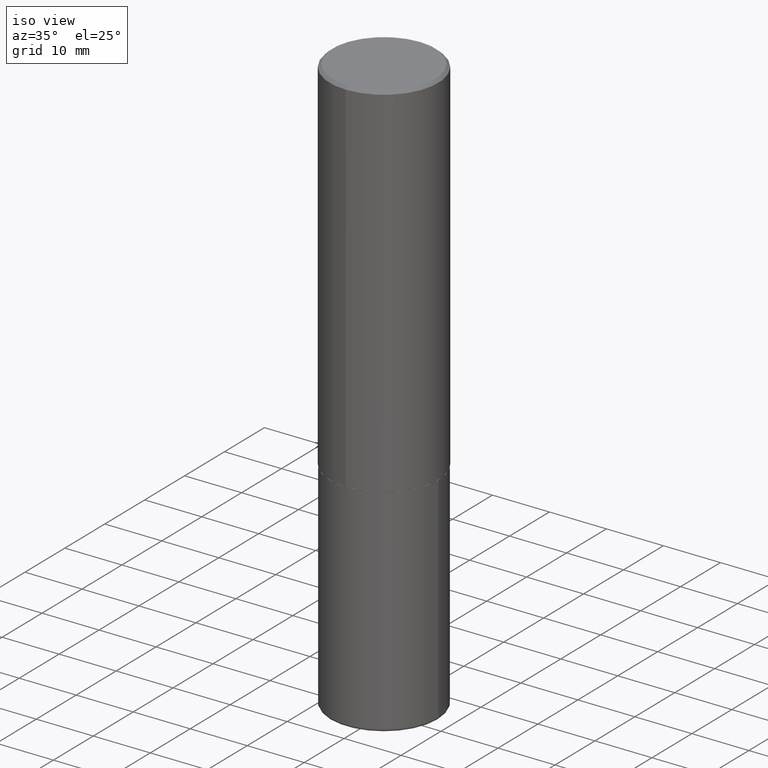
[diagram: clean part render]
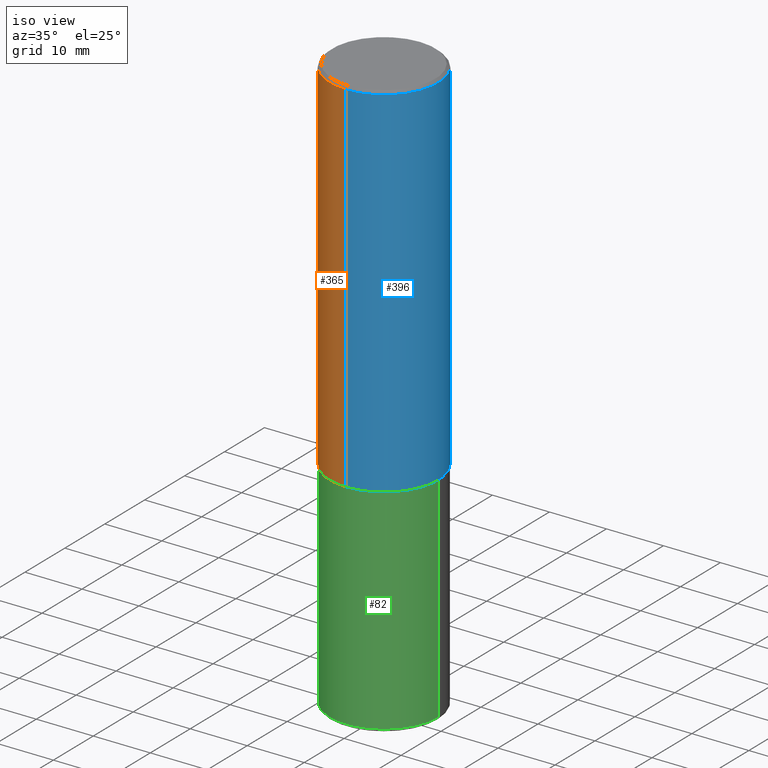
[diagram: same view with three faces highlighted in distinct colors, each labeled with its STEP entity id]
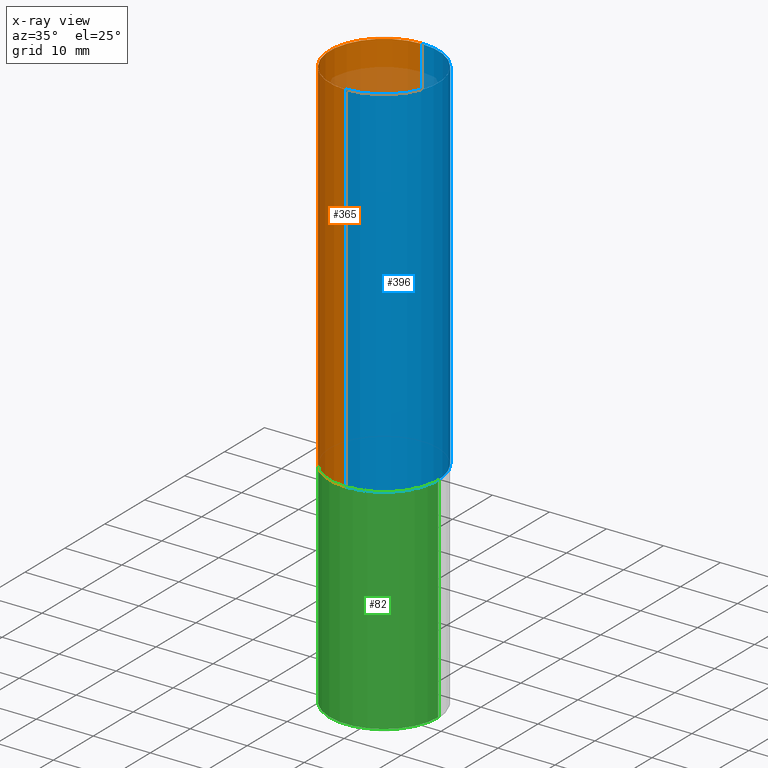
[diagram: x-ray of the same camera — body ghosted, the three highlighted faces saturated]
A machine part, iso view with three faces highlighted in distinct colors.
The next image is the same camera in x-ray (body ghosted, the three faces saturated) — at least one of them is partly hidden behind the body in this view.
Their STEP definitions:

[orange] entity #365 — the highlighted cylindrical surface (partial cylindrical patch) has radius 9.525 mm, axis along (-0, 0, 1).
#49 = CIRCLE ( 'NONE', #325, 0.3750000000000002776 ) ;
#57 = CIRCLE ( 'NONE', #191, 0.3750000000000000555 ) ;
#65 = VECTOR ( 'NONE', #77, 39.37007874015748143 ) ;
#77 = DIRECTION ( 'NONE',  ( -2.444465131706345255E-29, 3.492918657822378868E-15, 1.000000000000000000 ) ) ;
#86 = ORIENTED_EDGE ( 'NONE', *, *, #170, .F. ) ;
#88 = CARTESIAN_POINT ( 'NONE',  ( -2.572686749164323547E-15, -0.3750000000000001110, -0.01999999999999877570 ) ) ;
#90 = ORIENTED_EDGE ( 'NONE', *, *, #261, .T. ) ;
#107 = CARTESIAN_POINT ( 'NONE',  ( -2.618611004132290852E-15, -0.3750000000000090483, -2.498999999999998778 ) ) ;
#110 = DIRECTION ( 'NONE',  ( -2.444465131706345255E-29, 3.492918657822378868E-15, 1.000000000000000000 ) ) ;
#111 = CYLINDRICAL_SURFACE ( 'NONE', #330, 0.3750000000000001665 ) ;
#121 = CARTESIAN_POINT ( 'NONE',  ( 0.000000000000000000, 0.000000000000000000, 0.000000000000000000 ) ) ;
#123 = VERTEX_POINT ( 'NONE', #256 ) ;
#140 = DIRECTION ( 'NONE',  ( -2.444465131706345255E-29, 3.492918657822378473E-15, 1.000000000000000000 ) ) ;
#142 = CARTESIAN_POINT ( 'NONE',  ( 2.664535259100376486E-15, 0.3750000000000001665, -1.309844496683392470E-15 ) ) ;
#170 = EDGE_CURVE ( 'NONE', #123, #376, #57, .T. ) ;
#191 = AXIS2_PLACEMENT_3D ( 'NONE', #368, #367, #328 ) ;
#202 = VECTOR ( 'NONE', #110, 39.37007874015748143 ) ;
#212 = VERTEX_POINT ( 'NONE', #107 ) ;
#219 = ORIENTED_EDGE ( 'NONE', *, *, #293, .T. ) ;
#227 = CARTESIAN_POINT ( 'NONE',  ( -2.618611004132351200E-15, -0.3750000000000001665, 1.309844496683392470E-15 ) ) ;
#256 = CARTESIAN_POINT ( 'NONE',  ( 2.618611004132350411E-15, 0.3749999999999999445, -0.02000000000000139513 ) ) ;
#257 = DIRECTION ( 'NONE',  ( -6.982962677686266711E-15, -1.000000000000000000, 2.913971193241878794E-15 ) ) ;
#261 = EDGE_CURVE ( 'NONE', #374, #212, #49, .T. ) ;
#265 = EDGE_CURVE ( 'NONE', #374, #123, #395, .T. ) ;
#293 = EDGE_CURVE ( 'NONE', #212, #376, #299, .T. ) ;
#299 = LINE ( 'NONE', #227, #202 ) ;
#302 = DIRECTION ( 'NONE',  ( -6.982962677686266711E-15, -1.000000000000000000, 3.492918657822378473E-15 ) ) ;
#304 = CARTESIAN_POINT ( 'NONE',  ( 2.664535259100408040E-15, 0.3749999999999915623, -2.499000000000000998 ) ) ;
#325 = AXIS2_PLACEMENT_3D ( 'NONE', #363, #140, #257 ) ;
#328 = DIRECTION ( 'NONE',  ( -6.982962677686265922E-15, -1.000000000000000000, 3.494488891895536035E-15 ) ) ;
#330 = AXIS2_PLACEMENT_3D ( 'NONE', #121, #407, #302 ) ;
#338 = EDGE_LOOP ( 'NONE', ( #381, #90, #219, #86 ) ) ;
#349 = FACE_OUTER_BOUND ( 'NONE', #338, .T. ) ;
#363 = CARTESIAN_POINT ( 'NONE',  ( 6.108718364134156127E-29, -8.728803725898123939E-15, -2.498999999999999666 ) ) ;
#365 = ADVANCED_FACE ( 'NONE', ( #349 ), #111, .T. ) ;
#367 = DIRECTION ( 'NONE',  ( -2.444465131706345255E-29, 3.492918657822378473E-15, 1.000000000000000000 ) ) ;
#368 = CARTESIAN_POINT ( 'NONE',  ( 4.888930263412711914E-31, -6.985837315644786578E-17, -0.02000000000000008715 ) ) ;
#374 = VERTEX_POINT ( 'NONE', #304 ) ;
#376 = VERTEX_POINT ( 'NONE', #88 ) ;
#381 = ORIENTED_EDGE ( 'NONE', *, *, #265, .F. ) ;
#395 = LINE ( 'NONE', #142, #65 ) ;
#407 = DIRECTION ( 'NONE',  ( -2.444465131706345255E-29, 3.492918657822378473E-15, 1.000000000000000000 ) ) ;

[blue] entity #396 — the highlighted cylindrical surface (partial cylindrical patch) has radius 9.525 mm, axis along (-0, 0, 1).
#22 = DIRECTION ( 'NONE',  ( -2.444465131706345255E-29, 3.492918657822378473E-15, 1.000000000000000000 ) ) ;
#27 = EDGE_LOOP ( 'NONE', ( #347, #242, #309, #378 ) ) ;
#41 = CARTESIAN_POINT ( 'NONE',  ( 6.108718364134156127E-29, -8.728803725898123939E-15, -2.498999999999999666 ) ) ;
#43 = AXIS2_PLACEMENT_3D ( 'NONE', #52, #375, #58 ) ;
#52 = CARTESIAN_POINT ( 'NONE',  ( 4.888930263412711914E-31, -6.985837315644786578E-17, -0.02000000000000008715 ) ) ;
#58 = DIRECTION ( 'NONE',  ( -6.982962677686265922E-15, -1.000000000000000000, 3.494488891895536035E-15 ) ) ;
#61 = CARTESIAN_POINT ( 'NONE',  ( 0.000000000000000000, 0.000000000000000000, 0.000000000000000000 ) ) ;
#65 = VECTOR ( 'NONE', #77, 39.37007874015748143 ) ;
#77 = DIRECTION ( 'NONE',  ( -2.444465131706345255E-29, 3.492918657822378868E-15, 1.000000000000000000 ) ) ;
#88 = CARTESIAN_POINT ( 'NONE',  ( -2.572686749164323547E-15, -0.3750000000000001110, -0.01999999999999877570 ) ) ;
#92 = FACE_OUTER_BOUND ( 'NONE', #27, .T. ) ;
#107 = CARTESIAN_POINT ( 'NONE',  ( -2.618611004132290852E-15, -0.3750000000000090483, -2.498999999999998778 ) ) ;
#110 = DIRECTION ( 'NONE',  ( -2.444465131706345255E-29, 3.492918657822378868E-15, 1.000000000000000000 ) ) ;
#123 = VERTEX_POINT ( 'NONE', #256 ) ;
#142 = CARTESIAN_POINT ( 'NONE',  ( 2.664535259100376486E-15, 0.3750000000000001665, -1.309844496683392470E-15 ) ) ;
#161 = AXIS2_PLACEMENT_3D ( 'NONE', #41, #168, #244 ) ;
#168 = DIRECTION ( 'NONE',  ( -2.444465131706345255E-29, 3.492918657822378473E-15, 1.000000000000000000 ) ) ;
#169 = CIRCLE ( 'NONE', #161, 0.3750000000000002776 ) ;
#178 = CYLINDRICAL_SURFACE ( 'NONE', #181, 0.3750000000000001665 ) ;
#181 = AXIS2_PLACEMENT_3D ( 'NONE', #61, #22, #306 ) ;
#202 = VECTOR ( 'NONE', #110, 39.37007874015748143 ) ;
#212 = VERTEX_POINT ( 'NONE', #107 ) ;
#215 = CIRCLE ( 'NONE', #43, 0.3750000000000000555 ) ;
#227 = CARTESIAN_POINT ( 'NONE',  ( -2.618611004132351200E-15, -0.3750000000000001665, 1.309844496683392470E-15 ) ) ;
#242 = ORIENTED_EDGE ( 'NONE', *, *, #265, .T. ) ;
#244 = DIRECTION ( 'NONE',  ( -6.982962677686266711E-15, -1.000000000000000000, 2.913971193241878794E-15 ) ) ;
#256 = CARTESIAN_POINT ( 'NONE',  ( 2.618611004132350411E-15, 0.3749999999999999445, -0.02000000000000139513 ) ) ;
#265 = EDGE_CURVE ( 'NONE', #374, #123, #395, .T. ) ;
#293 = EDGE_CURVE ( 'NONE', #212, #376, #299, .T. ) ;
#299 = LINE ( 'NONE', #227, #202 ) ;
#304 = CARTESIAN_POINT ( 'NONE',  ( 2.664535259100408040E-15, 0.3749999999999915623, -2.499000000000000998 ) ) ;
#306 = DIRECTION ( 'NONE',  ( -6.982962677686266711E-15, -1.000000000000000000, 3.492918657822378473E-15 ) ) ;
#309 = ORIENTED_EDGE ( 'NONE', *, *, #348, .F. ) ;
#320 = EDGE_CURVE ( 'NONE', #212, #374, #169, .T. ) ;
#347 = ORIENTED_EDGE ( 'NONE', *, *, #320, .T. ) ;
#348 = EDGE_CURVE ( 'NONE', #376, #123, #215, .T. ) ;
#374 = VERTEX_POINT ( 'NONE', #304 ) ;
#375 = DIRECTION ( 'NONE',  ( -2.444465131706345255E-29, 3.492918657822378473E-15, 1.000000000000000000 ) ) ;
#376 = VERTEX_POINT ( 'NONE', #88 ) ;
#378 = ORIENTED_EDGE ( 'NONE', *, *, #293, .F. ) ;
#395 = LINE ( 'NONE', #142, #65 ) ;
#396 = ADVANCED_FACE ( 'NONE', ( #92 ), #178, .T. ) ;

[green] entity #82 — the highlighted cylindrical surface (partial cylindrical patch) has radius 9.525 mm, axis along (-0, 0, 1).
#9 = FACE_OUTER_BOUND ( 'NONE', #44, .T. ) ;
#14 = EDGE_CURVE ( 'NONE', #56, #34, #413, .T. ) ;
#25 = ORIENTED_EDGE ( 'NONE', *, *, #53, .T. ) ;
#34 = VERTEX_POINT ( 'NONE', #95 ) ;
#39 = DIRECTION ( 'NONE',  ( 1.000000000000000000, -6.982962677686266711E-15, 0.000000000000000000 ) ) ;
#44 = EDGE_LOOP ( 'NONE', ( #408, #343, #25, #93 ) ) ;
#48 = DIRECTION ( 'NONE',  ( 1.000000000000000000, -6.982962677686264344E-15, 0.000000000000000000 ) ) ;
#53 = EDGE_CURVE ( 'NONE', #34, #54, #314, .T. ) ;
#54 = VERTEX_POINT ( 'NONE', #356 ) ;
#55 = DIRECTION ( 'NONE',  ( -2.445468806185136877E-29, 3.491481338843145188E-15, 1.000000000000000000 ) ) ;
#56 = VERTEX_POINT ( 'NONE', #68 ) ;
#68 = CARTESIAN_POINT ( 'NONE',  ( -0.3749999999999999445, -1.123156046949534334E-14, -3.979999999999999982 ) ) ;
#82 = ADVANCED_FACE ( 'NONE', ( #9 ), #137, .T. ) ;
#93 = ORIENTED_EDGE ( 'NONE', *, *, #315, .F. ) ;
#95 = CARTESIAN_POINT ( 'NONE',  ( 0.3749999999999999445, -1.651470673272807063E-14, -3.979999999999999982 ) ) ;
#105 = CARTESIAN_POINT ( 'NONE',  ( 6.113672015462840371E-29, -8.728703347107863365E-15, -2.499999999999999556 ) ) ;
#106 = CARTESIAN_POINT ( 'NONE',  ( -0.3750000000000000555, -8.647864278751415502E-15, -2.499999999999999556 ) ) ;
#114 = CIRCLE ( 'NONE', #307, 0.3750000000000000555 ) ;
#126 = DIRECTION ( 'NONE',  ( 1.000000000000000000, -6.982962677686265922E-15, 4.876176775795935793E-29 ) ) ;
#137 = CYLINDRICAL_SURFACE ( 'NONE', #149, 0.3750000000000000555 ) ;
#144 = VECTOR ( 'NONE', #390, 39.37007874015748143 ) ;
#149 = AXIS2_PLACEMENT_3D ( 'NONE', #193, #319, #126 ) ;
#193 = CARTESIAN_POINT ( 'NONE',  ( 0.000000000000000000, 0.000000000000000000, 0.000000000000000000 ) ) ;
#206 = DIRECTION ( 'NONE',  ( -2.445468806185136597E-29, 3.491481338843145583E-15, 1.000000000000000000 ) ) ;
#208 = LINE ( 'NONE', #210, #251 ) ;
#210 = CARTESIAN_POINT ( 'NONE',  ( -0.3750000000000000555, 2.664535259100376091E-15, -1.844600658845589598E-29 ) ) ;
#238 = VERTEX_POINT ( 'NONE', #106 ) ;
#251 = VECTOR ( 'NONE', #55, 39.37007874015748143 ) ;
#285 = DIRECTION ( 'NONE',  ( -2.445468806185136597E-29, 3.491481338843145583E-15, 1.000000000000000000 ) ) ;
#307 = AXIS2_PLACEMENT_3D ( 'NONE', #105, #206, #48 ) ;
#314 = LINE ( 'NONE', #383, #144 ) ;
#315 = EDGE_CURVE ( 'NONE', #238, #54, #114, .T. ) ;
#319 = DIRECTION ( 'NONE',  ( -2.445468806185136597E-29, 3.491481338843145583E-15, 1.000000000000000000 ) ) ;
#324 = CARTESIAN_POINT ( 'NONE',  ( 9.732965848616844417E-29, -1.389609572859572061E-14, -3.979999999999999982 ) ) ;
#343 = ORIENTED_EDGE ( 'NONE', *, *, #14, .T. ) ;
#356 = CARTESIAN_POINT ( 'NONE',  ( 0.3750000000000000555, -1.134731435124021180E-14, -2.499999999999999556 ) ) ;
#369 = EDGE_CURVE ( 'NONE', #56, #238, #208, .T. ) ;
#383 = CARTESIAN_POINT ( 'NONE',  ( 0.3750000000000000555, -2.618611004132350016E-15, 1.828566290923476203E-29 ) ) ;
#390 = DIRECTION ( 'NONE',  ( -2.445468806185136877E-29, 3.491481338843145188E-15, 1.000000000000000000 ) ) ;
#393 = AXIS2_PLACEMENT_3D ( 'NONE', #324, #285, #39 ) ;
#408 = ORIENTED_EDGE ( 'NONE', *, *, #369, .F. ) ;
#413 = CIRCLE ( 'NONE', #393, 0.3750000000000000555 ) ;